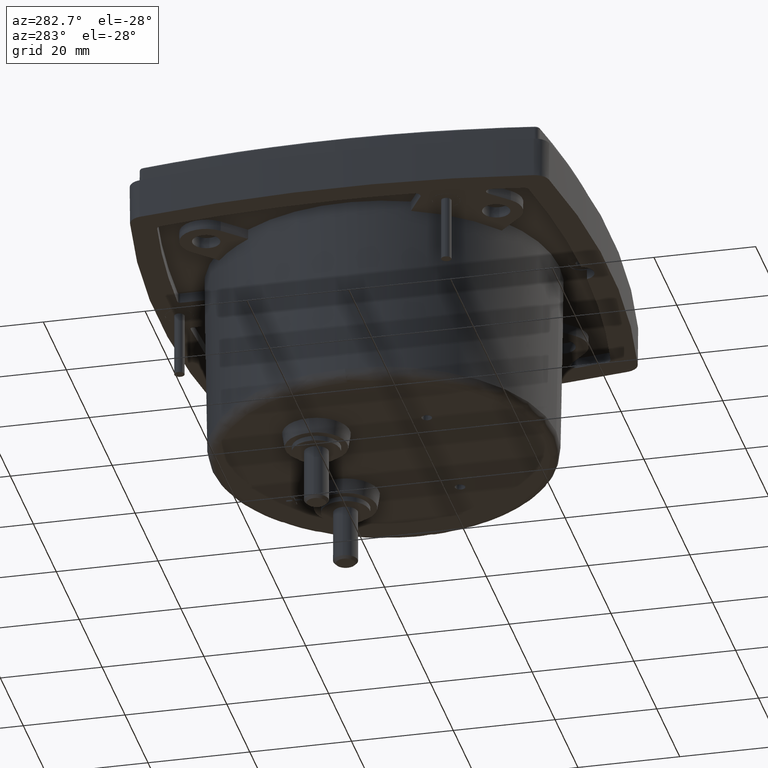
[diagram: clean part render]
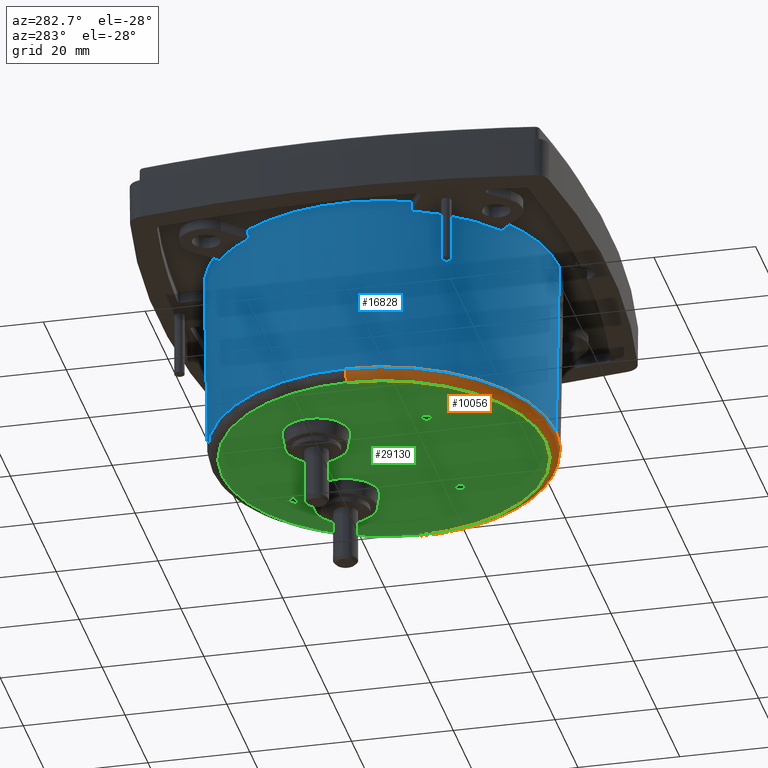
[diagram: same view with three faces highlighted in distinct colors, each labeled with its STEP entity id]
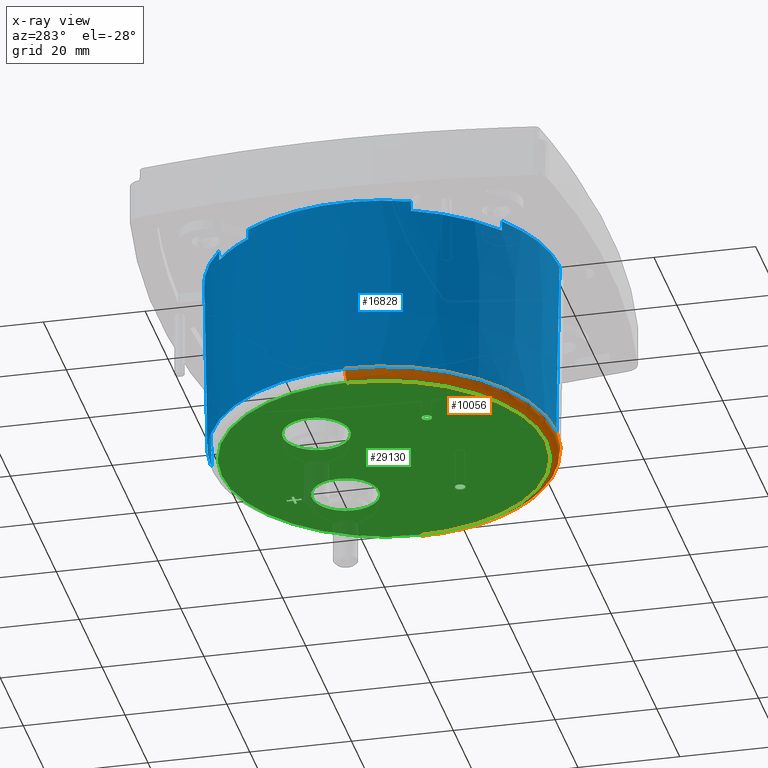
[diagram: x-ray of the same camera — body ghosted, the three highlighted faces saturated]
A machine part, auxiliary view with three faces highlighted in distinct colors.
The next image is the same camera in x-ray (body ghosted, the three faces saturated) — at least one of them is partly hidden behind the body in this view.
Their STEP definitions:

[orange] entity #10056 — the highlighted face is a freeform B-spline surface patch.
#349 = CARTESIAN_POINT ( 'NONE',  ( 1.254801019973432519, -1.895426431080329266, -1.614173228346456934 ) ) ;
#507 = EDGE_CURVE ( 'NONE', #16746, #7416, #3793, .T. ) ;
#849 = DIRECTION ( 'NONE',  ( 0.000000000000000000, 0.000000000000000000, 1.000000000000000000 ) ) ;
#1598 = CIRCLE ( 'NONE', #19922, 0.07874015748031502893 ) ;
#2456 = CARTESIAN_POINT ( 'NONE',  ( -1.333616791691573766, -2.052882761026218361, -1.536807276097422736 ) ) ;
#2764 = DIRECTION ( 'NONE',  ( 0.000000000000000000, 1.000000000000000000, 0.000000000000000000 ) ) ;
#3375 = CARTESIAN_POINT ( 'NONE',  ( -1.254888626718630107, 0.6142632156117351361, -1.614173228346456712 ) ) ;
#3580 = AXIS2_PLACEMENT_3D ( 'NONE', #23151, #2764, #23448 ) ;
#3793 =( BOUNDED_CURVE ( )  B_SPLINE_CURVE ( 3, ( #10401, #8268, #8132, #22316 ),
 .UNSPECIFIED., .F., .F. ) 
 B_SPLINE_CURVE_WITH_KNOTS ( ( 4, 4 ),
 ( 0.000000000000000000, 0.5000000000000000000 ),
 .UNSPECIFIED. ) 
 CURVE ( )  GEOMETRIC_REPRESENTATION_ITEM ( )  RATIONAL_B_SPLINE_CURVE ( ( 1.000000000000000000, 0.3333333333333341475, 0.3333333333333341475, 1.000000000000000000 ) ) 
 REPRESENTATION_ITEM ( '' )  );
#4766 = VERTEX_POINT ( 'NONE', #19701 ) ;
#5588 = VERTEX_POINT ( 'NONE', #13530 ) ;
#5823 = AXIS2_PLACEMENT_3D ( 'NONE', #12324, #849, #14722 ) ;
#6125 = ORIENTED_EDGE ( 'NONE', *, *, #13669, .F. ) ;
#6692 = CARTESIAN_POINT ( 'NONE',  ( 1.332735290183489019, -2.051294971500443154, -1.582289476602136480 ) ) ;
#7104 = DIRECTION ( 'NONE',  ( -1.000000000000000000, 0.000000000000000000, -3.072776688117471814E-15 ) ) ;
#7371 = AXIS2_PLACEMENT_3D ( 'NONE', #27774, #13887, #7104 ) ;
#7416 = VERTEX_POINT ( 'NONE', #22427 ) ;
#7571 = ORIENTED_EDGE ( 'NONE', *, *, #507, .T. ) ;
#8132 = CARTESIAN_POINT ( 'NONE',  ( 1.254801019973427190, -1.895426431080326601, -1.614173228346456712 ) ) ;
#8268 = CARTESIAN_POINT ( 'NONE',  ( -1.254888626718629885, -1.895426431080324159, -1.614173228346456712 ) ) ;
#8641 = CARTESIAN_POINT ( 'NONE',  ( 1.254801019973432075, 0.6142632156117324715, -1.535433070866141669 ) ) ;
#9409 = CARTESIAN_POINT ( 'NONE',  ( -1.332822896928687051, 0.6142632156117320275, -1.582289476602136258 ) ) ;
#9566 = CARTESIAN_POINT ( 'NONE',  ( -1.254888626718629441, -1.895426431080330376, -1.614173228346456934 ) ) ;
#9651 = EDGE_LOOP ( 'NONE', ( #7571, #12557, #6125, #12427, #22242 ) ) ;
#10056 = ADVANCED_FACE ( 'NONE', ( #22694 ), #12687, .T. ) ;
#10401 = CARTESIAN_POINT ( 'NONE',  ( -1.254888626718630107, 0.6142632156117351361, -1.614173228346456712 ) ) ;
#11529 = CARTESIAN_POINT ( 'NONE',  ( 1.254801019973432297, 0.6142632156117324715, -1.614173228346456712 ) ) ;
#12279 = CIRCLE ( 'NONE', #3580, 0.07874015748031502893 ) ;
#12324 = CARTESIAN_POINT ( 'NONE',  ( -4.380337259885353868E-05, 0.6142632156117322495, -1.536807276097915453 ) ) ;
#12427 = ORIENTED_EDGE ( 'NONE', *, *, #12488, .F. ) ;
#12488 = EDGE_CURVE ( 'NONE', #5588, #4766, #18868, .T. ) ;
#12557 = ORIENTED_EDGE ( 'NONE', *, *, #14163, .T. ) ;
#12687 =( BOUNDED_SURFACE ( )  B_SPLINE_SURFACE ( 3, 3, ( 
 ( #11529, #349, #9566, #29801 ),
 ( #20740, #18776, #27383, #23159 ),
 ( #16212, #6692, #20600, #9409 ),
 ( #25266, #25428, #2456, #27830 ) ),
 .UNSPECIFIED., .F., .F., .T. ) 
 B_SPLINE_SURFACE_WITH_KNOTS ( ( 4, 4 ),
 ( 4, 4 ),
 ( 0.000000000000000000, 1.000000000000000000 ),
 ( 0.000000000000000000, 1.000000000000000000 ),
 .UNSPECIFIED. ) 
 GEOMETRIC_REPRESENTATION_ITEM ( )  RATIONAL_B_SPLINE_SURFACE ( (
 ( 1.000000000000000000, 0.3333333333333334259, 0.3333333333333334259, 1.000000000000000000),
 ( 0.8088336327694520822, 0.2696112109231507681, 0.2696112109231507681, 0.8088336327694520822),
 ( 0.8088336327694520822, 0.2696112109231507681, 0.2696112109231507681, 0.8088336327694520822),
 ( 1.000000000000000000, 0.3333333333333334259, 0.3333333333333334259, 1.000000000000000000) ) ) 
 REPRESENTATION_ITEM ( '' )  SURFACE ( )  );
#13530 = CARTESIAN_POINT ( 'NONE',  ( -1.333616791705676485, 0.6142632156117322495, -1.536807276097917452 ) ) ;
#13669 = EDGE_CURVE ( 'NONE', #4766, #16705, #27625, .T. ) ;
#13887 = DIRECTION ( 'NONE',  ( 0.000000000000000000, 0.000000000000000000, 1.000000000000000000 ) ) ;
#14163 = EDGE_CURVE ( 'NONE', #7416, #16705, #1598, .T. ) ;
#14722 = DIRECTION ( 'NONE',  ( -1.000000000000000000, 0.000000000000000000, -3.072776688117471814E-15 ) ) ;
#16212 = CARTESIAN_POINT ( 'NONE',  ( 1.332735290183489019, 0.6142632156117324715, -1.582289476602136258 ) ) ;
#16705 = VERTEX_POINT ( 'NONE', #17565 ) ;
#16746 = VERTEX_POINT ( 'NONE', #3375 ) ;
#17565 = CARTESIAN_POINT ( 'NONE',  ( 1.333529184960478897, 0.6142632156117324715, -1.536807276097913455 ) ) ;
#18776 = CARTESIAN_POINT ( 'NONE',  ( 1.300290148692781367, -1.986404688519027184, -1.614173228346456490 ) ) ;
#18868 = CIRCLE ( 'NONE', #5823, 1.333572988347188737 ) ;
#19701 = CARTESIAN_POINT ( 'NONE',  ( -4.380337259896631603E-05, -0.7193097727354564874, -1.536807276097915453 ) ) ;
#19922 = AXIS2_PLACEMENT_3D ( 'NONE', #8641, #19967, #21790 ) ;
#19967 = DIRECTION ( 'NONE',  ( 1.224646799147353207E-16, -1.000000000000000000, 0.000000000000000000 ) ) ;
#20600 = CARTESIAN_POINT ( 'NONE',  ( -1.332822896928686163, -2.051294971500443598, -1.582289476602136480 ) ) ;
#20740 = CARTESIAN_POINT ( 'NONE',  ( 1.300290148692781367, 0.6142632156117324715, -1.614173228346456490 ) ) ;
#21790 = DIRECTION ( 'NONE',  ( 1.000000000000000000, 0.000000000000000000, 0.000000000000000000 ) ) ;
#22242 = ORIENTED_EDGE ( 'NONE', *, *, #25805, .F. ) ;
#22316 = CARTESIAN_POINT ( 'NONE',  ( 1.254801019973432519, 0.6142632156117310283, -1.614173228346456712 ) ) ;
#22427 = CARTESIAN_POINT ( 'NONE',  ( 1.254801019973432519, 0.6142632156117310283, -1.614173228346456712 ) ) ;
#22694 = FACE_OUTER_BOUND ( 'NONE', #9651, .T. ) ;
#23151 = CARTESIAN_POINT ( 'NONE',  ( -1.254888626718629885, 0.6142632156117322495, -1.535433070866141669 ) ) ;
#23159 = CARTESIAN_POINT ( 'NONE',  ( -1.300377755437978955, 0.6142632156117320275, -1.614173228346456490 ) ) ;
#23448 = DIRECTION ( 'NONE',  ( -1.000000000000000000, 0.000000000000000000, 0.000000000000000000 ) ) ;
#25266 = CARTESIAN_POINT ( 'NONE',  ( 1.333529184946376400, 0.6142632156117324715, -1.536807276097422958 ) ) ;
#25428 = CARTESIAN_POINT ( 'NONE',  ( 1.333529184946376400, -2.052882761026217473, -1.536807276097422736 ) ) ;
#25805 = EDGE_CURVE ( 'NONE', #16746, #5588, #12279, .T. ) ;
#27383 = CARTESIAN_POINT ( 'NONE',  ( -1.300377755437978289, -1.986404688519028072, -1.614173228346456490 ) ) ;
#27625 = CIRCLE ( 'NONE', #7371, 1.333572988347188737 ) ;
#27774 = CARTESIAN_POINT ( 'NONE',  ( -4.380337259885353868E-05, 0.6142632156117322495, -1.536807276097915453 ) ) ;
#27830 = CARTESIAN_POINT ( 'NONE',  ( -1.333616791691574210, 0.6142632156117320275, -1.536807276097422958 ) ) ;
#29801 = CARTESIAN_POINT ( 'NONE',  ( -1.254888626718630107, 0.6142632156117320275, -1.614173228346456712 ) ) ;

[blue] entity #16828 — the highlighted conical surface has half-angle 1 deg.
#849 = DIRECTION ( 'NONE',  ( 0.000000000000000000, 0.000000000000000000, 1.000000000000000000 ) ) ;
#1015 = AXIS2_PLACEMENT_3D ( 'NONE', #13486, #22698, #2008 ) ;
#1250 = CARTESIAN_POINT ( 'NONE',  ( -1.265141713318655547, 0.1202539825630708631, -0.1299212598425212584 ) ) ;
#1355 = ORIENTED_EDGE ( 'NONE', *, *, #7532, .T. ) ;
#1357 = CARTESIAN_POINT ( 'NONE',  ( -4.380337259880149020E-05, 0.6142632156117322495, -0.2086614173228641955 ) ) ;
#1852 = CARTESIAN_POINT ( 'NONE',  ( -0.8046515130129942017, 1.708394961643462384, -0.1299212598425212584 ) ) ;
#1983 = CARTESIAN_POINT ( 'NONE',  ( -1.092780594047106257, 1.418447753736370220, -0.2086614173228492353 ) ) ;
#2008 = DIRECTION ( 'NONE',  ( -3.552711330678727497E-15, 1.000000000000000000, 0.000000000000000000 ) ) ;
#2167 = DIRECTION ( 'NONE',  ( 0.000000000000000000, 6.285866044552559974E-18, 1.000000000000000000 ) ) ;
#2442 = ORIENTED_EDGE ( 'NONE', *, *, #13867, .T. ) ;
#2463 = DIRECTION ( 'NONE',  ( 0.000000000000000000, 1.000000000000000000, 0.000000000000000000 ) ) ;
#2467 = EDGE_CURVE ( 'NONE', #9833, #25203, #20391, .T. ) ;
#3025 = ORIENTED_EDGE ( 'NONE', *, *, #27108, .T. ) ;
#3887 = EDGE_CURVE ( 'NONE', #10883, #5588, #7326, .T. ) ;
#4293 = CARTESIAN_POINT ( 'NONE',  ( -0.8045106050741550607, -0.4794034715007677305, -0.1561679790026395120 ) ) ;
#4520 = LINE ( 'NONE', #27621, #24239 ) ;
#4766 = VERTEX_POINT ( 'NONE', #19701 ) ;
#4903 = ORIENTED_EDGE ( 'NONE', *, *, #2467, .T. ) ;
#5588 = VERTEX_POINT ( 'NONE', #13530 ) ;
#5752 = DIRECTION ( 'NONE',  ( -0.000000000000000000, -6.285866044552559974E-18, -1.000000000000000000 ) ) ;
#5823 = AXIS2_PLACEMENT_3D ( 'NONE', #12324, #849, #14722 ) ;
#5836 = CARTESIAN_POINT ( 'NONE',  ( -4.380337259896781359E-05, -0.7438670594677303516, -0.1299212598425228404 ) ) ;
#6475 = EDGE_CURVE ( 'NONE', #13566, #20294, #9620, .T. ) ;
#7003 = AXIS2_PLACEMENT_3D ( 'NONE', #10805, #21692, #24549 ) ;
#7326 = CIRCLE ( 'NONE', #10699, 1.333572988347188737 ) ;
#7532 = EDGE_CURVE ( 'NONE', #13187, #24096, #27896, .T. ) ;
#7729 = VERTEX_POINT ( 'NONE', #14414 ) ;
#7994 = LINE ( 'NONE', #28390, #27779 ) ;
#8591 = CARTESIAN_POINT ( 'NONE',  ( -4.380337259885353868E-05, 0.6142632156117322495, -1.536807276097915453 ) ) ;
#9155 = CARTESIAN_POINT ( 'NONE',  ( -4.380337259880149020E-05, 1.971019076131488523, -0.2086614173228641955 ) ) ;
#9285 = CARTESIAN_POINT ( 'NONE',  ( -0.8043695478877617155, -0.4789384863562512473, -0.1824146981627534914 ) ) ;
#9620 = B_SPLINE_CURVE_WITH_KNOTS ( 'NONE', 3,
 ( #25094, #29615, #27809, #1983 ),
 .UNSPECIFIED., .F., .F.,
 ( 4, 4 ),
 ( 0.000000000000000000, 1.000000000000000000 ),
 .UNSPECIFIED. ) ;
#9741 = CARTESIAN_POINT ( 'NONE',  ( -0.2040810578772637718, 1.955589150583003866, -0.2086614173228492353 ) ) ;
#9783 = EDGE_CURVE ( 'NONE', #12469, #7729, #11038, .T. ) ;
#9802 = ORIENTED_EDGE ( 'NONE', *, *, #9783, .T. ) ;
#9833 = VERTEX_POINT ( 'NONE', #10182 ) ;
#9978 = AXIS2_PLACEMENT_3D ( 'NONE', #18560, #15844, #23239 ) ;
#9994 = CONICAL_SURFACE ( 'NONE', #21096, 1.358130275079462601, 0.01745329249999984927 ) ;
#10046 = CARTESIAN_POINT ( 'NONE',  ( -0.8043695478877659344, 1.707464917579712527, -0.1824146981627534914 ) ) ;
#10054 = CARTESIAN_POINT ( 'NONE',  ( -1.264170381793427556, 0.1202856268431571896, -0.1824146981627534914 ) ) ;
#10182 = CARTESIAN_POINT ( 'NONE',  ( -1.263684765064968740, 0.1203016938455675339, -0.2086614173228492353 ) ) ;
#10363 = CIRCLE ( 'NONE', #7003, 1.358130275079462601 ) ;
#10589 = DIRECTION ( 'NONE',  ( 0.000000000000000000, 1.000000000000000000, 0.000000000000000000 ) ) ;
#10699 = AXIS2_PLACEMENT_3D ( 'NONE', #8591, #17946, #11152 ) ;
#10805 = CARTESIAN_POINT ( 'NONE',  ( -4.380337259880149020E-05, 0.6142632156117322495, -0.1299212598425228404 ) ) ;
#10883 = VERTEX_POINT ( 'NONE', #16437 ) ;
#10887 = EDGE_CURVE ( 'NONE', #20294, #19119, #29733, .T. ) ;
#11038 = B_SPLINE_CURVE_WITH_KNOTS ( 'NONE', 3,
 ( #23929, #16837, #19538, #9741 ),
 .UNSPECIFIED., .F., .F.,
 ( 4, 4 ),
 ( 0.000000000000000000, 1.000000000000000000 ),
 .UNSPECIFIED. ) ;
#11152 = DIRECTION ( 'NONE',  ( -1.000000000000000000, 0.000000000000000000, -3.072776688117471814E-15 ) ) ;
#11169 = VERTEX_POINT ( 'NONE', #5836 ) ;
#12181 = ORIENTED_EDGE ( 'NONE', *, *, #19616, .T. ) ;
#12324 = CARTESIAN_POINT ( 'NONE',  ( -4.380337259885353868E-05, 0.6142632156117322495, -1.536807276097915453 ) ) ;
#12469 = VERTEX_POINT ( 'NONE', #25772 ) ;
#12488 = EDGE_CURVE ( 'NONE', #5588, #4766, #18868, .T. ) ;
#12549 = CARTESIAN_POINT ( 'NONE',  ( -4.380337259880149020E-05, 0.6142632156117322495, -0.1299212598425228404 ) ) ;
#12733 = CARTESIAN_POINT ( 'NONE',  ( -1.265141713318655547, 0.1202539825630708631, -0.1299212598425212584 ) ) ;
#13187 = VERTEX_POINT ( 'NONE', #23286 ) ;
#13284 = DIRECTION ( 'NONE',  ( -2.137303365641795342E-18, -0.01745240641734309428, 0.9998476951567392135 ) ) ;
#13295 = ORIENTED_EDGE ( 'NONE', *, *, #14345, .T. ) ;
#13486 = CARTESIAN_POINT ( 'NONE',  ( -4.380337259880149020E-05, 0.6142632156117322495, -0.1299212598425228404 ) ) ;
#13530 = CARTESIAN_POINT ( 'NONE',  ( -1.333616791705676485, 0.6142632156117322495, -1.536807276097917452 ) ) ;
#13537 = DIRECTION ( 'NONE',  ( -0.000000000000000000, -6.285866044552559974E-18, -1.000000000000000000 ) ) ;
#13549 = EDGE_CURVE ( 'NONE', #4766, #11169, #4520, .T. ) ;
#13564 = EDGE_LOOP ( 'NONE', ( #20120, #14833, #14552, #26714, #1355, #2442, #4903, #3025, #21336, #28327, #12181, #25620, #9802, #13295, #18972 ) ) ;
#13566 = VERTEX_POINT ( 'NONE', #20232 ) ;
#13571 = CARTESIAN_POINT ( 'NONE',  ( -0.8042283414972363209, -0.4784735750627756024, -0.2086614173228492353 ) ) ;
#13651 = AXIS2_PLACEMENT_3D ( 'NONE', #1357, #28838, #21888 ) ;
#13867 = EDGE_CURVE ( 'NONE', #24096, #9833, #29065, .T. ) ;
#14041 = CIRCLE ( 'NONE', #1015, 1.358130275079462601 ) ;
#14137 = AXIS2_PLACEMENT_3D ( 'NONE', #22615, #13537, #26989 ) ;
#14245 = VERTEX_POINT ( 'NONE', #1852 ) ;
#14345 = EDGE_CURVE ( 'NONE', #7729, #16436, #22270, .T. ) ;
#14414 = CARTESIAN_POINT ( 'NONE',  ( -0.2040810578772637718, 1.955589150583003866, -0.2086614173228492353 ) ) ;
#14552 = ORIENTED_EDGE ( 'NONE', *, *, #13549, .T. ) ;
#14696 = CARTESIAN_POINT ( 'NONE',  ( -0.8045106050741613890, 1.707929902724227844, -0.1561679790026395120 ) ) ;
#14722 = DIRECTION ( 'NONE',  ( -1.000000000000000000, 0.000000000000000000, -3.072776688117471814E-15 ) ) ;
#14833 = ORIENTED_EDGE ( 'NONE', *, *, #12488, .T. ) ;
#15768 = EDGE_CURVE ( 'NONE', #14245, #12469, #14041, .T. ) ;
#15844 = DIRECTION ( 'NONE',  ( -0.000000000000000000, -6.285866044552559974E-18, -1.000000000000000000 ) ) ;
#16241 = CARTESIAN_POINT ( 'NONE',  ( -0.8046515130130335036, -0.4798685304200637769, -0.1299212598425226461 ) ) ;
#16436 = VERTEX_POINT ( 'NONE', #9155 ) ;
#16437 = CARTESIAN_POINT ( 'NONE',  ( -4.380337259880149020E-05, 1.947836203958920986, -1.536807276097915453 ) ) ;
#16828 = ADVANCED_FACE ( 'NONE', ( #29805 ), #9994, .T. ) ;
#16837 = CARTESIAN_POINT ( 'NONE',  ( -0.2045390034650536315, 1.956446277149430646, -0.1561679790026395120 ) ) ;
#17110 = CARTESIAN_POINT ( 'NONE',  ( -0.8046515130129942017, 1.708394961643462384, -0.1299212598425212584 ) ) ;
#17946 = DIRECTION ( 'NONE',  ( 0.000000000000000000, 0.000000000000000000, 1.000000000000000000 ) ) ;
#18178 = CARTESIAN_POINT ( 'NONE',  ( -4.380337259880149020E-05, 0.6142632156117322495, -0.1299212598425253939 ) ) ;
#18560 = CARTESIAN_POINT ( 'NONE',  ( -4.380337259880149020E-05, 0.6142632156117322495, -0.2086614173228641955 ) ) ;
#18868 = CIRCLE ( 'NONE', #5823, 1.333572988347188737 ) ;
#18972 = ORIENTED_EDGE ( 'NONE', *, *, #21577, .F. ) ;
#18986 = CARTESIAN_POINT ( 'NONE',  ( -0.8042283414977521305, 1.707000006286933269, -0.2086614173228657498 ) ) ;
#19119 = VERTEX_POINT ( 'NONE', #18986 ) ;
#19538 = CARTESIAN_POINT ( 'NONE',  ( -0.2043099518092470757, 1.956017740507558500, -0.1824146981627534914 ) ) ;
#19616 = EDGE_CURVE ( 'NONE', #19119, #14245, #20551, .T. ) ;
#19694 = CARTESIAN_POINT ( 'NONE',  ( -1.264656031239643985, 0.1202697230749273094, -0.1561679790026395120 ) ) ;
#19701 = CARTESIAN_POINT ( 'NONE',  ( -4.380337259896631603E-05, -0.7193097727354564874, -1.536807276097915453 ) ) ;
#20120 = ORIENTED_EDGE ( 'NONE', *, *, #3887, .T. ) ;
#20232 = CARTESIAN_POINT ( 'NONE',  ( -1.094175549404332592, 1.418870925252120108, -0.1299212598425212584 ) ) ;
#20294 = VERTEX_POINT ( 'NONE', #21122 ) ;
#20364 = EDGE_CURVE ( 'NONE', #11169, #13187, #10363, .T. ) ;
#20391 = B_SPLINE_CURVE_WITH_KNOTS ( 'NONE', 3,
 ( #22107, #10054, #19694, #12733 ),
 .UNSPECIFIED., .F., .F.,
 ( 4, 4 ),
 ( 0.000000000000000000, 1.000000000000000000 ),
 .UNSPECIFIED. ) ;
#20551 = B_SPLINE_CURVE_WITH_KNOTS ( 'NONE', 3,
 ( #24069, #10046, #14696, #17110 ),
 .UNSPECIFIED., .F., .F.,
 ( 4, 4 ),
 ( 0.000000000000000000, 1.000000000000000000 ),
 .UNSPECIFIED. ) ;
#21096 = AXIS2_PLACEMENT_3D ( 'NONE', #18178, #2167, #2463 ) ;
#21122 = CARTESIAN_POINT ( 'NONE',  ( -1.092780594047106257, 1.418447753736370220, -0.2086614173228492353 ) ) ;
#21336 = ORIENTED_EDGE ( 'NONE', *, *, #6475, .T. ) ;
#21487 = CIRCLE ( 'NONE', #27777, 1.358130275079462601 ) ;
#21577 = EDGE_CURVE ( 'NONE', #10883, #16436, #7994, .T. ) ;
#21692 = DIRECTION ( 'NONE',  ( -0.000000000000000000, -6.285866044552559974E-18, -1.000000000000000000 ) ) ;
#21888 = DIRECTION ( 'NONE',  ( 8.881758270223527387E-16, 1.000000000000000000, 0.000000000000000000 ) ) ;
#22039 = DIRECTION ( 'NONE',  ( 0.000000000000000000, 0.01745240641734310816, 0.9998476951567392135 ) ) ;
#22107 = CARTESIAN_POINT ( 'NONE',  ( -1.263684765064968740, 0.1203016938455675339, -0.2086614173228492353 ) ) ;
#22270 = CIRCLE ( 'NONE', #13651, 1.356755860519755830 ) ;
#22615 = CARTESIAN_POINT ( 'NONE',  ( -4.380337259880149020E-05, 0.6142632156117322495, -0.2086614173228641955 ) ) ;
#22698 = DIRECTION ( 'NONE',  ( -0.000000000000000000, -6.285866044552559974E-18, -1.000000000000000000 ) ) ;
#23239 = DIRECTION ( 'NONE',  ( -2.664533625826553536E-15, 1.000000000000000000, 0.000000000000000000 ) ) ;
#23286 = CARTESIAN_POINT ( 'NONE',  ( -0.8046515130130335036, -0.4798685304200637769, -0.1299212598425226461 ) ) ;
#23929 = CARTESIAN_POINT ( 'NONE',  ( -0.2047682128214291242, 1.956874760424019755, -0.1299212598425226461 ) ) ;
#24069 = CARTESIAN_POINT ( 'NONE',  ( -0.8042283414977521305, 1.707000006286933269, -0.2086614173228657498 ) ) ;
#24096 = VERTEX_POINT ( 'NONE', #13571 ) ;
#24239 = VECTOR ( 'NONE', #13284, 39.37007874015748854 ) ;
#24549 = DIRECTION ( 'NONE',  ( 0.000000000000000000, 1.000000000000000000, 0.000000000000000000 ) ) ;
#25094 = CARTESIAN_POINT ( 'NONE',  ( -1.094175549404332592, 1.418870925252120108, -0.1299212598425212584 ) ) ;
#25203 = VERTEX_POINT ( 'NONE', #1250 ) ;
#25620 = ORIENTED_EDGE ( 'NONE', *, *, #15768, .T. ) ;
#25772 = CARTESIAN_POINT ( 'NONE',  ( -0.2047682128214291242, 1.956874760424019755, -0.1299212598425226461 ) ) ;
#26714 = ORIENTED_EDGE ( 'NONE', *, *, #20364, .T. ) ;
#26989 = DIRECTION ( 'NONE',  ( 0.000000000000000000, 1.000000000000000000, 0.000000000000000000 ) ) ;
#27108 = EDGE_CURVE ( 'NONE', #25203, #13566, #21487, .T. ) ;
#27621 = CARTESIAN_POINT ( 'NONE',  ( -4.380337259896781359E-05, -0.7438670594677303516, -0.1299212598425253939 ) ) ;
#27777 = AXIS2_PLACEMENT_3D ( 'NONE', #12549, #5752, #10589 ) ;
#27779 = VECTOR ( 'NONE', #22039, 39.37007874015748854 ) ;
#27809 = CARTESIAN_POINT ( 'NONE',  ( -1.093245505340584955, 1.418588960126891285, -0.1824146981627534914 ) ) ;
#27856 = CARTESIAN_POINT ( 'NONE',  ( -0.8042283414972363209, -0.4784735750627756024, -0.2086614173228492353 ) ) ;
#27896 = B_SPLINE_CURVE_WITH_KNOTS ( 'NONE', 3,
 ( #16241, #4293, #9285, #27856 ),
 .UNSPECIFIED., .F., .F.,
 ( 4, 4 ),
 ( 0.000000000000000000, 1.000000000000000000 ),
 .UNSPECIFIED. ) ;
#28327 = ORIENTED_EDGE ( 'NONE', *, *, #10887, .T. ) ;
#28390 = CARTESIAN_POINT ( 'NONE',  ( -4.380337259880149020E-05, 1.972393490691195073, -0.1299212598425253939 ) ) ;
#28838 = DIRECTION ( 'NONE',  ( -0.000000000000000000, -6.285866044552559974E-18, -1.000000000000000000 ) ) ;
#29065 = CIRCLE ( 'NONE', #14137, 1.356755860519755830 ) ;
#29615 = CARTESIAN_POINT ( 'NONE',  ( -1.093710490485102493, 1.418730017313283520, -0.1561679790026395120 ) ) ;
#29733 = CIRCLE ( 'NONE', #9978, 1.356755860519755830 ) ;
#29805 = FACE_OUTER_BOUND ( 'NONE', #13564, .T. ) ;

[green] entity #29130 — the highlighted planar face has unit normal (0, 0, -1).
#13 = EDGE_CURVE ( 'NONE', #3233, #28942, #629, .T. ) ;
#123 = CARTESIAN_POINT ( 'NONE',  ( 0.4901136769423622419, 1.431192349469999847, -1.614173228346456712 ) ) ;
#192 = DIRECTION ( 'NONE',  ( 0.000000000000000000, 0.000000000000000000, 1.000000000000000000 ) ) ;
#225 = LINE ( 'NONE', #26049, #26786 ) ;
#274 = AXIS2_PLACEMENT_3D ( 'NONE', #19540, #14703, #17560 ) ;
#291 = EDGE_CURVE ( 'NONE', #5074, #17981, #15856, .T. ) ;
#394 = ORIENTED_EDGE ( 'NONE', *, *, #9203, .T. ) ;
#507 = EDGE_CURVE ( 'NONE', #16746, #7416, #3793, .T. ) ;
#629 = LINE ( 'NONE', #29302, #14889 ) ;
#1149 = FACE_BOUND ( 'NONE', #5631, .T. ) ;
#1484 = CARTESIAN_POINT ( 'NONE',  ( 0.5590113147376377656, 0.6142632156117322495, -1.614173228346456712 ) ) ;
#1492 = CARTESIAN_POINT ( 'NONE',  ( 0.6108007442004547149, 0.1536332943518897709, -1.614173228346330813 ) ) ;
#1668 = ORIENTED_EDGE ( 'NONE', *, *, #507, .F. ) ;
#1715 = CIRCLE ( 'NONE', #274, 0.03997840584076965686 ) ;
#2012 = EDGE_CURVE ( 'NONE', #11406, #25683, #15882, .T. ) ;
#2143 = CIRCLE ( 'NONE', #5989, 0.2602893009248598011 ) ;
#2284 = CARTESIAN_POINT ( 'NONE',  ( -4.380337259885353868E-05, 1.362294711674724379, -1.614173228346456712 ) ) ;
#3048 = ORIENTED_EDGE ( 'NONE', *, *, #14734, .T. ) ;
#3233 = VERTEX_POINT ( 'NONE', #10813 ) ;
#3375 = CARTESIAN_POINT ( 'NONE',  ( -1.254888626718630107, 0.6142632156117351361, -1.614173228346456712 ) ) ;
#3389 = LINE ( 'NONE', #9920, #17580 ) ;
#3421 = DIRECTION ( 'NONE',  ( -1.000000000000000000, 0.000000000000000000, 0.000000000000000000 ) ) ;
#3724 = DIRECTION ( 'NONE',  ( 0.000000000000000000, 0.000000000000000000, 1.000000000000000000 ) ) ;
#3793 =( BOUNDED_CURVE ( )  B_SPLINE_CURVE ( 3, ( #10401, #8268, #8132, #22316 ),
 .UNSPECIFIED., .F., .F. ) 
 B_SPLINE_CURVE_WITH_KNOTS ( ( 4, 4 ),
 ( 0.000000000000000000, 0.5000000000000000000 ),
 .UNSPECIFIED. ) 
 CURVE ( )  GEOMETRIC_REPRESENTATION_ITEM ( )  RATIONAL_B_SPLINE_CURVE ( ( 1.000000000000000000, 0.3333333333333341475, 0.3333333333333341475, 1.000000000000000000 ) ) 
 REPRESENTATION_ITEM ( '' )  );
#3825 = CARTESIAN_POINT ( 'NONE',  ( -0.5709099451048819107, 0.1536332943518889660, -1.614173228346330813 ) ) ;
#3859 = DIRECTION ( 'NONE',  ( 1.000000000000000000, 0.000000000000000000, 0.000000000000000000 ) ) ;
#3968 = EDGE_CURVE ( 'NONE', #29075, #16031, #16488, .T. ) ;
#4230 = AXIS2_PLACEMENT_3D ( 'NONE', #20608, #192, #25571 ) ;
#4451 = VECTOR ( 'NONE', #11779, 39.37007874015748143 ) ;
#4647 = AXIS2_PLACEMENT_3D ( 'NONE', #19588, #28797, #9160 ) ;
#4846 = CARTESIAN_POINT ( 'NONE',  ( 0.4409010785171654234, 1.431192349469999847, -1.614173228346456712 ) ) ;
#5042 = CARTESIAN_POINT ( 'NONE',  ( 0.4901136769423622419, 1.411507310099921142, -1.614173228346456712 ) ) ;
#5045 = VERTEX_POINT ( 'NONE', #26719 ) ;
#5074 = VERTEX_POINT ( 'NONE', #21892 ) ;
#5119 = LINE ( 'NONE', #25802, #11750 ) ;
#5230 = CARTESIAN_POINT ( 'NONE',  ( 0.5308439325189153735, 0.1536332943518897709, -1.614173228346330813 ) ) ;
#5395 = ORIENTED_EDGE ( 'NONE', *, *, #18190, .T. ) ;
#5450 = CARTESIAN_POINT ( 'NONE',  ( -4.380337259885353868E-05, 1.411507310099921142, -1.614173228346456712 ) ) ;
#5554 = CARTESIAN_POINT ( 'NONE',  ( -1.254888626718629885, 3.123952862303800426, -1.614173228346456712 ) ) ;
#5631 = EDGE_LOOP ( 'NONE', ( #3048, #5395, #16824, #10290, #13641, #23870, #7436, #14324, #16144, #27577, #10272, #20129 ) ) ;
#5715 = CARTESIAN_POINT ( 'NONE',  ( -4.380337259885353868E-05, 1.431192349469999847, -1.614173228346456712 ) ) ;
#5989 = AXIS2_PLACEMENT_3D ( 'NONE', #17677, #20389, #29304 ) ;
#6128 = CARTESIAN_POINT ( 'NONE',  ( 0.5708223383596850997, 0.1536332943518897709, -1.614173228346330813 ) ) ;
#6155 = CIRCLE ( 'NONE', #4230, 0.2602893009239279909 ) ;
#6460 = DIRECTION ( 'NONE',  ( 0.000000000000000000, 0.000000000000000000, 1.000000000000000000 ) ) ;
#6848 = AXIS2_PLACEMENT_3D ( 'NONE', #29283, #6460, #20529 ) ;
#7042 = CIRCLE ( 'NONE', #23914, 0.03997840584076630538 ) ;
#7269 = VERTEX_POINT ( 'NONE', #8926 ) ;
#7398 = DIRECTION ( 'NONE',  ( -1.000000000000000000, 0.000000000000000000, 0.000000000000000000 ) ) ;
#7416 = VERTEX_POINT ( 'NONE', #22427 ) ;
#7436 = ORIENTED_EDGE ( 'NONE', *, *, #9008, .T. ) ;
#7540 = DIRECTION ( 'NONE',  ( -0.000000000000000000, -1.000000000000000000, -0.000000000000000000 ) ) ;
#7561 = VECTOR ( 'NONE', #19619, 39.37007874015748143 ) ;
#8132 = CARTESIAN_POINT ( 'NONE',  ( 1.254801019973427190, -1.895426431080326601, -1.614173228346456712 ) ) ;
#8244 = FACE_BOUND ( 'NONE', #18328, .T. ) ;
#8268 = CARTESIAN_POINT ( 'NONE',  ( -1.254888626718629885, -1.895426431080324159, -1.614173228346456712 ) ) ;
#8926 = CARTESIAN_POINT ( 'NONE',  ( 0.5097987163124410026, 1.431192349469999847, -1.614173228346456712 ) ) ;
#9008 = EDGE_CURVE ( 'NONE', #11656, #23911, #27965, .T. ) ;
#9036 = ORIENTED_EDGE ( 'NONE', *, *, #13830, .F. ) ;
#9160 = DIRECTION ( 'NONE',  ( -1.000000000000000000, 0.000000000000000000, 0.000000000000000000 ) ) ;
#9203 = EDGE_CURVE ( 'NONE', #5045, #29321, #7042, .T. ) ;
#9309 = VERTEX_POINT ( 'NONE', #11488 ) ;
#9383 = ORIENTED_EDGE ( 'NONE', *, *, #15617, .T. ) ;
#9422 = CARTESIAN_POINT ( 'NONE',  ( 0.5097987163124410026, 1.411507310099921142, -1.614173228346456712 ) ) ;
#9920 = CARTESIAN_POINT ( 'NONE',  ( 0.4409010785171654234, 0.6142632156117322495, -1.614173228346456712 ) ) ;
#10272 = ORIENTED_EDGE ( 'NONE', *, *, #26811, .T. ) ;
#10290 = ORIENTED_EDGE ( 'NONE', *, *, #13, .T. ) ;
#10376 = PLANE ( 'NONE',  #4647 ) ;
#10401 = CARTESIAN_POINT ( 'NONE',  ( -1.254888626718630107, 0.6142632156117351361, -1.614173228346456712 ) ) ;
#10652 = EDGE_LOOP ( 'NONE', ( #18238, #19563 ) ) ;
#10667 = EDGE_CURVE ( 'NONE', #23810, #28917, #12969, .T. ) ;
#10813 = CARTESIAN_POINT ( 'NONE',  ( 0.4901136769423622419, 1.480404947895196832, -1.614173228346456712 ) ) ;
#11160 = AXIS2_PLACEMENT_3D ( 'NONE', #3825, #13036, #12588 ) ;
#11176 = CARTESIAN_POINT ( 'NONE',  ( -0.5709099451048819107, 0.1536332943518889660, -1.614173228346330813 ) ) ;
#11406 = VERTEX_POINT ( 'NONE', #16706 ) ;
#11410 = VERTEX_POINT ( 'NONE', #5230 ) ;
#11462 = CARTESIAN_POINT ( 'NONE',  ( 0.5590113147376377656, 1.431192349469999847, -1.614173228346456712 ) ) ;
#11488 = CARTESIAN_POINT ( 'NONE',  ( 0.5097987163124410026, 1.480404947895196832, -1.614173228346456712 ) ) ;
#11656 = VERTEX_POINT ( 'NONE', #25890 ) ;
#11750 = VECTOR ( 'NONE', #3421, 39.37007874015748143 ) ;
#11779 = DIRECTION ( 'NONE',  ( 1.000000000000000000, -0.000000000000000000, -0.000000000000000000 ) ) ;
#11873 = CARTESIAN_POINT ( 'NONE',  ( -0.5309315392641156262, 0.1536332943518889660, -1.614173228346330813 ) ) ;
#11971 = CARTESIAN_POINT ( 'NONE',  ( 0.5097987163124410026, 0.6142632156117322495, -1.614173228346456712 ) ) ;
#12482 = CARTESIAN_POINT ( 'NONE',  ( -4.380337259885353868E-05, 1.411507310099921142, -1.614173228346456712 ) ) ;
#12588 = DIRECTION ( 'NONE',  ( -1.000000000000000000, 0.000000000000000000, 0.000000000000000000 ) ) ;
#12630 = FACE_OUTER_BOUND ( 'NONE', #28902, .T. ) ;
#12688 = DIRECTION ( 'NONE',  ( -0.000000000000000000, -1.000000000000000000, -0.000000000000000000 ) ) ;
#12789 = VECTOR ( 'NONE', #16050, 39.37007874015748143 ) ;
#12944 = CARTESIAN_POINT ( 'NONE',  ( -0.7603331042965264519, 1.023712034509370206, -1.614173228341856392 ) ) ;
#12969 = LINE ( 'NONE', #1484, #7561 ) ;
#13036 = DIRECTION ( 'NONE',  ( -0.000000000000000000, -0.000000000000000000, 1.000000000000000000 ) ) ;
#13641 = ORIENTED_EDGE ( 'NONE', *, *, #21938, .T. ) ;
#13830 = EDGE_CURVE ( 'NONE', #7416, #16746, #27343, .T. ) ;
#13894 = CARTESIAN_POINT ( 'NONE',  ( 0.5097987163124410026, 0.6142632156117322495, -1.614173228346456712 ) ) ;
#14220 = DIRECTION ( 'NONE',  ( 0.000000000000000000, 1.000000000000000000, 0.000000000000000000 ) ) ;
#14324 = ORIENTED_EDGE ( 'NONE', *, *, #23153, .T. ) ;
#14561 = EDGE_CURVE ( 'NONE', #22582, #5074, #16008, .T. ) ;
#14703 = DIRECTION ( 'NONE',  ( -0.000000000000000000, -0.000000000000000000, 1.000000000000000000 ) ) ;
#14734 = EDGE_CURVE ( 'NONE', #28917, #7269, #26418, .T. ) ;
#14735 = LINE ( 'NONE', #12482, #12789 ) ;
#14767 = CARTESIAN_POINT ( 'NONE',  ( -1.254888626718630107, 0.6142632156117351361, -1.614173228346456712 ) ) ;
#14889 = VECTOR ( 'NONE', #12688, 39.37007874015748143 ) ;
#15617 = EDGE_CURVE ( 'NONE', #29321, #5045, #24174, .T. ) ;
#15703 = CIRCLE ( 'NONE', #26784, 0.03997840584076965686 ) ;
#15725 = CARTESIAN_POINT ( 'NONE',  ( 0.4901136769423622419, 1.362294711674724379, -1.614173228346456712 ) ) ;
#15856 = LINE ( 'NONE', #13894, #29488 ) ;
#15882 = CIRCLE ( 'NONE', #24570, 0.2602893009248598011 ) ;
#16008 = LINE ( 'NONE', #2284, #4451 ) ;
#16031 = VERTEX_POINT ( 'NONE', #29567 ) ;
#16050 = DIRECTION ( 'NONE',  ( 1.000000000000000000, -0.000000000000000000, -0.000000000000000000 ) ) ;
#16144 = ORIENTED_EDGE ( 'NONE', *, *, #14561, .T. ) ;
#16488 = CIRCLE ( 'NONE', #6848, 0.2602893009239279909 ) ;
#16677 = VECTOR ( 'NONE', #28416, 39.37007874015748143 ) ;
#16706 = CARTESIAN_POINT ( 'NONE',  ( 0.2396668957025415714, 1.023712034509370206, -1.614173228341856392 ) ) ;
#16707 = ORIENTED_EDGE ( 'NONE', *, *, #3968, .T. ) ;
#16746 = VERTEX_POINT ( 'NONE', #3375 ) ;
#16824 = ORIENTED_EDGE ( 'NONE', *, *, #20684, .T. ) ;
#16970 = VECTOR ( 'NONE', #7398, 39.37007874015748143 ) ;
#17030 = CARTESIAN_POINT ( 'NONE',  ( 1.254801019973432519, 0.6142632156117310283, -1.614173228346456712 ) ) ;
#17065 = LINE ( 'NONE', #11971, #20640 ) ;
#17495 = VERTEX_POINT ( 'NONE', #1492 ) ;
#17560 = DIRECTION ( 'NONE',  ( -1.000000000000000000, 0.000000000000000000, 0.000000000000000000 ) ) ;
#17580 = VECTOR ( 'NONE', #28337, 39.37007874015748143 ) ;
#17677 = CARTESIAN_POINT ( 'NONE',  ( 0.4999561966274015945, 1.023712034509370206, -1.614173228341856392 ) ) ;
#17761 = ORIENTED_EDGE ( 'NONE', *, *, #26096, .T. ) ;
#17981 = VERTEX_POINT ( 'NONE', #9422 ) ;
#18040 = EDGE_CURVE ( 'NONE', #16031, #29075, #6155, .T. ) ;
#18190 = EDGE_CURVE ( 'NONE', #7269, #9309, #17065, .T. ) ;
#18238 = ORIENTED_EDGE ( 'NONE', *, *, #20779, .T. ) ;
#18328 = EDGE_LOOP ( 'NONE', ( #394, #9383 ) ) ;
#18581 = DIRECTION ( 'NONE',  ( -1.000000000000000000, 0.000000000000000000, 0.000000000000000000 ) ) ;
#19008 = CARTESIAN_POINT ( 'NONE',  ( 0.4901136769423622419, 0.6142632156117322495, -1.614173228346456712 ) ) ;
#19237 = EDGE_LOOP ( 'NONE', ( #25561, #16707 ) ) ;
#19540 = CARTESIAN_POINT ( 'NONE',  ( 0.5708223383596850997, 0.1536332943518897709, -1.614173228346330813 ) ) ;
#19563 = ORIENTED_EDGE ( 'NONE', *, *, #26855, .T. ) ;
#19588 = CARTESIAN_POINT ( 'NONE',  ( -4.380337259885353868E-05, 0.6142632156117322495, -1.614173228346456712 ) ) ;
#19619 = DIRECTION ( 'NONE',  ( 0.000000000000000000, 1.000000000000000000, 0.000000000000000000 ) ) ;
#19875 = EDGE_LOOP ( 'NONE', ( #17761, #26910 ) ) ;
#20129 = ORIENTED_EDGE ( 'NONE', *, *, #10667, .T. ) ;
#20389 = DIRECTION ( 'NONE',  ( 0.000000000000000000, 0.000000000000000000, 1.000000000000000000 ) ) ;
#20529 = DIRECTION ( 'NONE',  ( 1.000000000000000000, 0.000000000000000000, 0.000000000000000000 ) ) ;
#20608 = CARTESIAN_POINT ( 'NONE',  ( -0.5000438033725984610, 1.023712034509370206, -1.614173228341856392 ) ) ;
#20640 = VECTOR ( 'NONE', #14220, 39.37007874015748143 ) ;
#20684 = EDGE_CURVE ( 'NONE', #9309, #3233, #225, .T. ) ;
#20779 = EDGE_CURVE ( 'NONE', #11410, #17495, #1715, .T. ) ;
#21849 = FACE_BOUND ( 'NONE', #10652, .T. ) ;
#21892 = CARTESIAN_POINT ( 'NONE',  ( 0.5097987163124410026, 1.362294711674724379, -1.614173228346456712 ) ) ;
#21938 = EDGE_CURVE ( 'NONE', #28942, #22669, #5119, .T. ) ;
#22140 = DIRECTION ( 'NONE',  ( -1.000000000000000000, 0.000000000000000000, 0.000000000000000000 ) ) ;
#22316 = CARTESIAN_POINT ( 'NONE',  ( 1.254801019973432519, 0.6142632156117310283, -1.614173228346456712 ) ) ;
#22427 = CARTESIAN_POINT ( 'NONE',  ( 1.254801019973432519, 0.6142632156117310283, -1.614173228346456712 ) ) ;
#22508 = DIRECTION ( 'NONE',  ( 0.000000000000000000, 1.000000000000000000, 0.000000000000000000 ) ) ;
#22545 = CARTESIAN_POINT ( 'NONE',  ( 0.7602454975522615621, 1.023712034509370206, -1.614173228341856392 ) ) ;
#22582 = VERTEX_POINT ( 'NONE', #15725 ) ;
#22669 = VERTEX_POINT ( 'NONE', #4846 ) ;
#22711 = CARTESIAN_POINT ( 'NONE',  ( 0.5590113147376377656, 1.411507310099921142, -1.614173228346456712 ) ) ;
#23153 = EDGE_CURVE ( 'NONE', #23911, #22582, #28372, .T. ) ;
#23634 = DIRECTION ( 'NONE',  ( -1.000000000000000000, 0.000000000000000000, 0.000000000000000000 ) ) ;
#23635 = EDGE_CURVE ( 'NONE', #22669, #11656, #3389, .T. ) ;
#23810 = VERTEX_POINT ( 'NONE', #22711 ) ;
#23870 = ORIENTED_EDGE ( 'NONE', *, *, #23635, .T. ) ;
#23911 = VERTEX_POINT ( 'NONE', #5042 ) ;
#23914 = AXIS2_PLACEMENT_3D ( 'NONE', #11176, #25073, #18581 ) ;
#23970 = CARTESIAN_POINT ( 'NONE',  ( 0.4999561966274015945, 1.023712034509370206, -1.614173228341856392 ) ) ;
#24174 = CIRCLE ( 'NONE', #11160, 0.03997840584076630538 ) ;
#24570 = AXIS2_PLACEMENT_3D ( 'NONE', #23970, #3724, #3859 ) ;
#25073 = DIRECTION ( 'NONE',  ( -0.000000000000000000, -0.000000000000000000, 1.000000000000000000 ) ) ;
#25265 = DIRECTION ( 'NONE',  ( -0.000000000000000000, -0.000000000000000000, 1.000000000000000000 ) ) ;
#25561 = ORIENTED_EDGE ( 'NONE', *, *, #18040, .T. ) ;
#25571 = DIRECTION ( 'NONE',  ( 1.000000000000000000, 0.000000000000000000, 0.000000000000000000 ) ) ;
#25683 = VERTEX_POINT ( 'NONE', #22545 ) ;
#25802 = CARTESIAN_POINT ( 'NONE',  ( -4.380337259885353868E-05, 1.431192349469999847, -1.614173228346456712 ) ) ;
#25890 = CARTESIAN_POINT ( 'NONE',  ( 0.4409010785171654234, 1.411507310099921142, -1.614173228346456712 ) ) ;
#26049 = CARTESIAN_POINT ( 'NONE',  ( -4.380337259885353868E-05, 1.480404947895196832, -1.614173228346456712 ) ) ;
#26096 = EDGE_CURVE ( 'NONE', #25683, #11406, #2143, .T. ) ;
#26232 = FACE_BOUND ( 'NONE', #19237, .T. ) ;
#26248 = CARTESIAN_POINT ( 'NONE',  ( 1.254801019973437404, 3.123952862303797762, -1.614173228346456712 ) ) ;
#26418 = LINE ( 'NONE', #5715, #16970 ) ;
#26719 = CARTESIAN_POINT ( 'NONE',  ( -0.6108883509456481953, 0.1536332943518889660, -1.614173228346330813 ) ) ;
#26784 = AXIS2_PLACEMENT_3D ( 'NONE', #6128, #25265, #22140 ) ;
#26786 = VECTOR ( 'NONE', #23634, 39.37007874015748143 ) ;
#26811 = EDGE_CURVE ( 'NONE', #17981, #23810, #14735, .T. ) ;
#26855 = EDGE_CURVE ( 'NONE', #17495, #11410, #15703, .T. ) ;
#26910 = ORIENTED_EDGE ( 'NONE', *, *, #2012, .T. ) ;
#27343 =( BOUNDED_CURVE ( )  B_SPLINE_CURVE ( 3, ( #17030, #26248, #5554, #14767 ),
 .UNSPECIFIED., .F., .F. ) 
 B_SPLINE_CURVE_WITH_KNOTS ( ( 4, 4 ),
 ( 0.5000000000000000000, 1.000000000000000000 ),
 .UNSPECIFIED. ) 
 CURVE ( )  GEOMETRIC_REPRESENTATION_ITEM ( )  RATIONAL_B_SPLINE_CURVE ( ( 1.000000000000000000, 0.3333333333333325932, 0.3333333333333325932, 1.000000000000000000 ) ) 
 REPRESENTATION_ITEM ( '' )  );
#27577 = ORIENTED_EDGE ( 'NONE', *, *, #291, .T. ) ;
#27965 = LINE ( 'NONE', #5450, #16677 ) ;
#28337 = DIRECTION ( 'NONE',  ( -0.000000000000000000, -1.000000000000000000, -0.000000000000000000 ) ) ;
#28372 = LINE ( 'NONE', #19008, #29613 ) ;
#28416 = DIRECTION ( 'NONE',  ( 1.000000000000000000, -0.000000000000000000, -0.000000000000000000 ) ) ;
#28639 = FACE_BOUND ( 'NONE', #19875, .T. ) ;
#28797 = DIRECTION ( 'NONE',  ( 0.000000000000000000, 0.000000000000000000, -1.000000000000000000 ) ) ;
#28902 = EDGE_LOOP ( 'NONE', ( #1668, #9036 ) ) ;
#28917 = VERTEX_POINT ( 'NONE', #11462 ) ;
#28942 = VERTEX_POINT ( 'NONE', #123 ) ;
#29075 = VERTEX_POINT ( 'NONE', #12944 ) ;
#29130 = ADVANCED_FACE ( 'NONE', ( #28639, #26232, #12630, #8244, #21849, #1149 ), #10376, .T. ) ;
#29283 = CARTESIAN_POINT ( 'NONE',  ( -0.5000438033725984610, 1.023712034509370206, -1.614173228341856392 ) ) ;
#29302 = CARTESIAN_POINT ( 'NONE',  ( 0.4901136769423622419, 0.6142632156117322495, -1.614173228346456712 ) ) ;
#29304 = DIRECTION ( 'NONE',  ( 1.000000000000000000, 0.000000000000000000, 0.000000000000000000 ) ) ;
#29321 = VERTEX_POINT ( 'NONE', #11873 ) ;
#29488 = VECTOR ( 'NONE', #22508, 39.37007874015748143 ) ;
#29567 = CARTESIAN_POINT ( 'NONE',  ( -0.2397545024486703313, 1.023712034509370206, -1.614173228341856392 ) ) ;
#29613 = VECTOR ( 'NONE', #7540, 39.37007874015748143 ) ;